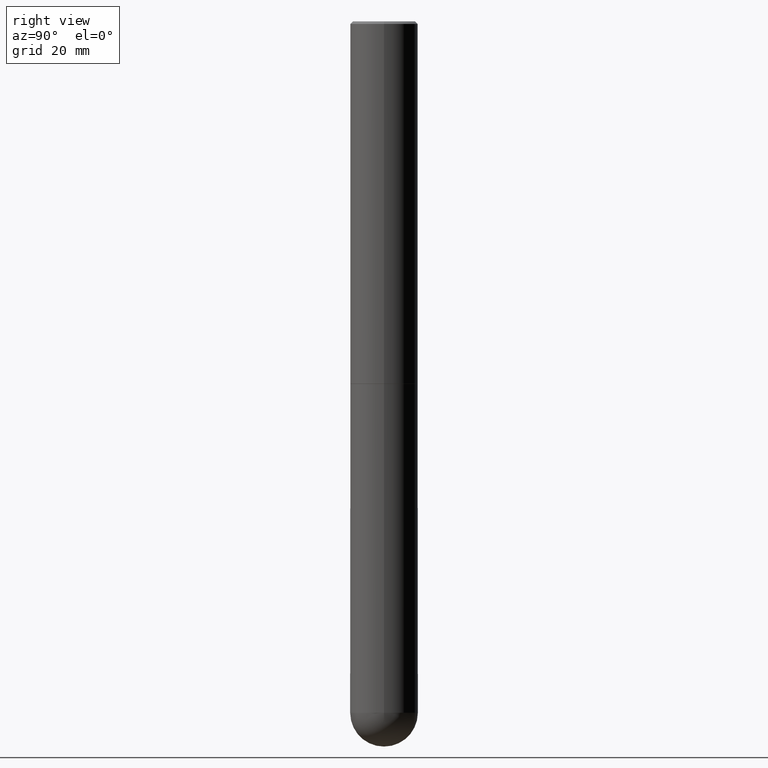
[diagram: clean part render]
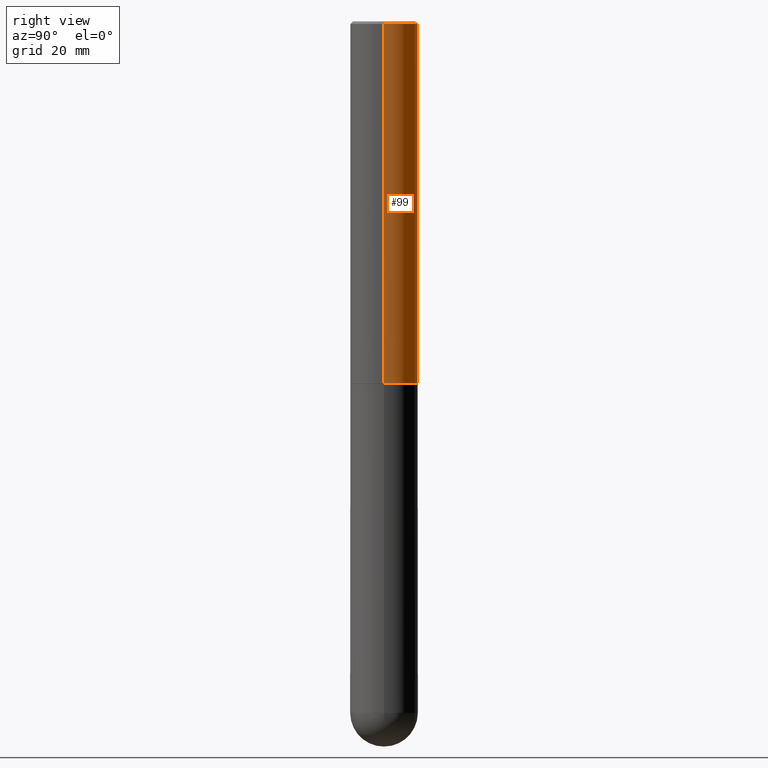
[diagram: same view with one face highlighted and labeled with its STEP entity id]
A machine part, right view. The second image highlights one B-rep face of the part: STEP entity #99.
In plain terms, the highlighted cylindrical surface (edge-blend (fillet) strip) has radius 7.0002 mm, axis along (-0, 0, 1).
Its self-contained STEP definition (entity closure, byte-faithful):
#11 = CIRCLE ( 'NONE', #361, 0.2756000000000000116 ) ;
#21 = ORIENTED_EDGE ( 'NONE', *, *, #345, .F. ) ;
#27 = CARTESIAN_POINT ( 'NONE',  ( 0.2756000000000004557, -1.223030998183365327E-14, -2.951700000000000212 ) ) ;
#43 = VERTEX_POINT ( 'NONE', #27 ) ;
#60 = DIRECTION ( 'NONE',  ( 1.000000000000000000, -6.982962677686267499E-15, 4.876176775795935793E-29 ) ) ;
#61 = CIRCLE ( 'NONE', #170, 0.2756000000000004557 ) ;
#64 = EDGE_CURVE ( 'NONE', #131, #388, #11, .T. ) ;
#69 = ORIENTED_EDGE ( 'NONE', *, *, #381, .T. ) ;
#86 = VECTOR ( 'NONE', #380, 39.37007874015748143 ) ;
#87 = DIRECTION ( 'NONE',  ( -2.445468806185136597E-29, 3.491481338843145583E-15, 1.000000000000000000 ) ) ;
#99 = ADVANCED_FACE ( 'NONE', ( #404 ), #309, .T. ) ;
#118 = CARTESIAN_POINT ( 'NONE',  ( 0.2756000000000002337, -1.924504513970336926E-15, 1.343874319409361109E-29 ) ) ;
#131 = VERTEX_POINT ( 'NONE', #409 ) ;
#170 = AXIS2_PLACEMENT_3D ( 'NONE', #301, #192, #365 ) ;
#182 = VECTOR ( 'NONE', #343, 39.37007874015748143 ) ;
#192 = DIRECTION ( 'NONE',  ( -2.445468806185136597E-29, 3.491481338843145583E-15, 1.000000000000000000 ) ) ;
#198 = CARTESIAN_POINT ( 'NONE',  ( -0.2756000000000000116, 1.854674887193472050E-15, -0.02000000000000006287 ) ) ;
#200 = ORIENTED_EDGE ( 'NONE', *, *, #64, .F. ) ;
#211 = AXIS2_PLACEMENT_3D ( 'NONE', #246, #87, #60 ) ;
#246 = CARTESIAN_POINT ( 'NONE',  ( 0.000000000000000000, 0.000000000000000000, 0.000000000000000000 ) ) ;
#250 = LINE ( 'NONE', #118, #86 ) ;
#268 = LINE ( 'NONE', #402, #182 ) ;
#273 = CARTESIAN_POINT ( 'NONE',  ( -0.2756000000000004002, -3.229561767565246331E-15, -2.951700000000000212 ) ) ;
#283 = EDGE_CURVE ( 'NONE', #43, #303, #61, .T. ) ;
#301 = CARTESIAN_POINT ( 'NONE',  ( 7.218290275216666916E-29, -1.030580546786331359E-14, -2.951700000000000212 ) ) ;
#303 = VERTEX_POINT ( 'NONE', #273 ) ;
#309 = CYLINDRICAL_SURFACE ( 'NONE', #211, 0.2756000000000002337 ) ;
#337 = DIRECTION ( 'NONE',  ( 1.000000000000000000, -6.982962677686267499E-15, 0.000000000000000000 ) ) ;
#343 = DIRECTION ( 'NONE',  ( -2.445468806185136877E-29, 3.491481338843145188E-15, 1.000000000000000000 ) ) ;
#344 = EDGE_LOOP ( 'NONE', ( #395, #69, #200, #21 ) ) ;
#345 = EDGE_CURVE ( 'NONE', #43, #131, #250, .T. ) ;
#348 = DIRECTION ( 'NONE',  ( -2.445468806185136597E-29, 3.491481338843145583E-15, 1.000000000000000000 ) ) ;
#361 = AXIS2_PLACEMENT_3D ( 'NONE', #377, #348, #337 ) ;
#365 = DIRECTION ( 'NONE',  ( 1.000000000000000000, -6.982962677686269077E-15, 0.000000000000000000 ) ) ;
#377 = CARTESIAN_POINT ( 'NONE',  ( 4.890937612370288923E-31, -6.982962677686312563E-17, -0.02000000000000006287 ) ) ;
#380 = DIRECTION ( 'NONE',  ( -2.445468806185136877E-29, 3.491481338843145188E-15, 1.000000000000000000 ) ) ;
#381 = EDGE_CURVE ( 'NONE', #303, #388, #268, .T. ) ;
#388 = VERTEX_POINT ( 'NONE', #198 ) ;
#395 = ORIENTED_EDGE ( 'NONE', *, *, #283, .T. ) ;
#402 = CARTESIAN_POINT ( 'NONE',  ( -0.2756000000000002337, 1.958255779754837773E-15, -1.355658510874253128E-29 ) ) ;
#404 = FACE_OUTER_BOUND ( 'NONE', #344, .T. ) ;
#409 = CARTESIAN_POINT ( 'NONE',  ( 0.2756000000000000116, -1.960582874962697406E-15, -0.02000000000000006287 ) ) ;